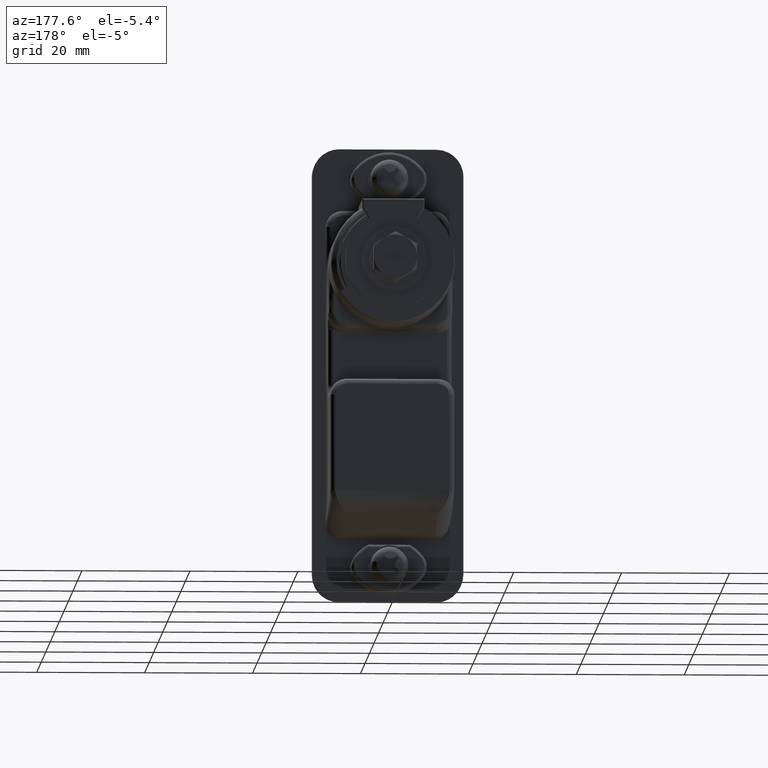
[diagram: clean part render]
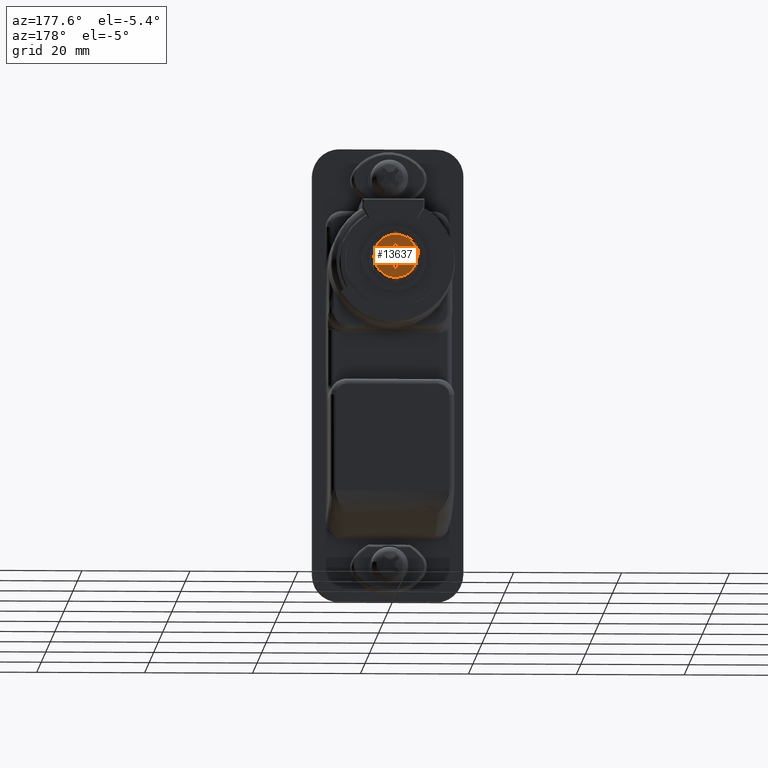
[diagram: same view with one face highlighted and labeled with its STEP entity id]
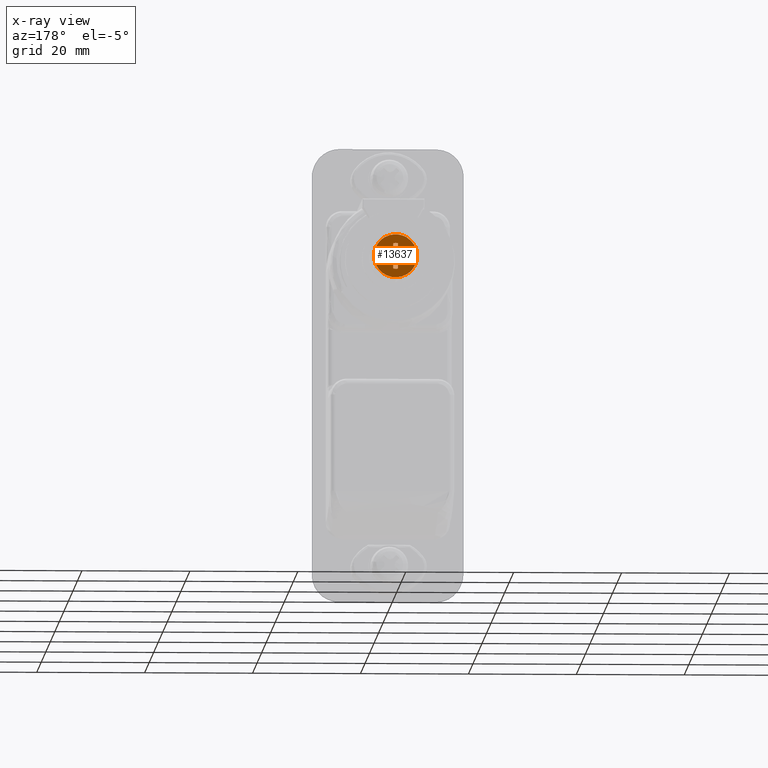
[diagram: x-ray of the same camera — body ghosted, the highlighted face saturated]
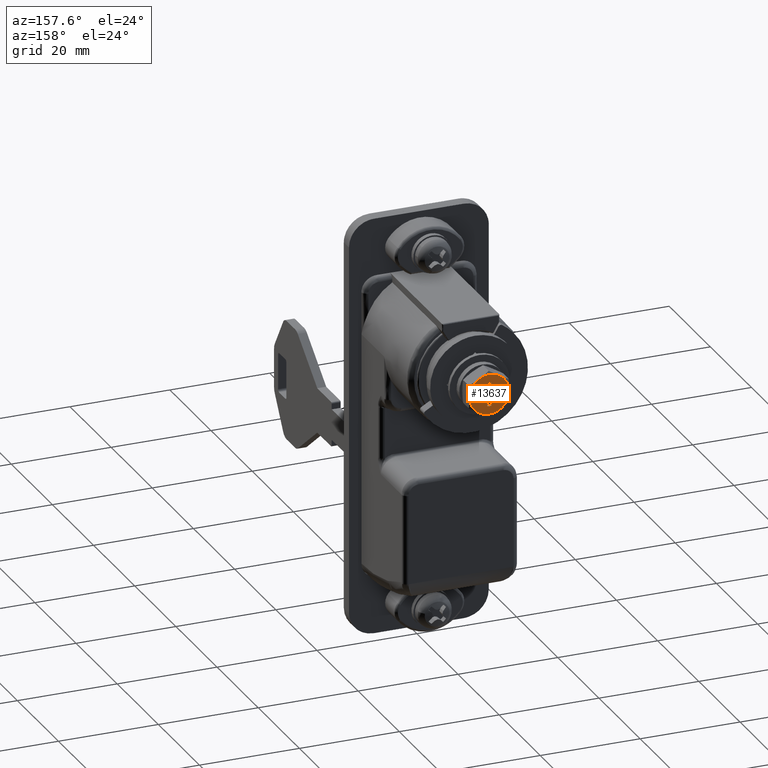
[diagram: same view with one face highlighted and labeled with its STEP entity id]
A machine part, auxiliary view. The second image highlights one B-rep face of the part: STEP entity #13637.
The next image is the same camera in x-ray: the body ghosted, the highlighted face saturated — about 0% of this face is hidden behind the body in this view.
A second angle (auxiliary view) of the same face is appended — the face is thin or edge-on in the first view.
In plain terms, the highlighted face is a freeform B-spline surface patch.
Its self-contained STEP definition (entity closure, byte-faithful):
#12249=CARTESIAN_POINT('',(92.639026999999999,-4.0,0.0));
#12250=VERTEX_POINT('',#12249);
#12393=CARTESIAN_POINT('',(92.639027000000098,2.023324305287225,-3.450530213696725));
#12394=VERTEX_POINT('',#12393);
#12408=CARTESIAN_POINT('',(92.639027000000098,1.977365605235620,-3.477071362976530));
#12409=VERTEX_POINT('',#12408);
#12410=CARTESIAN_POINT('',(92.639027000000098,2.023324305287225,-3.450530213696725));
#12411=CARTESIAN_POINT('',(92.639027000000098,1.977365605235620,-3.477071362976530));
#12412=QUASI_UNIFORM_CURVE('',1,(#12410,#12411),.UNSPECIFIED.,.F.,.U.);
#12413=EDGE_CURVE('',#12394,#12409,#12412,.T.);
#12481=CARTESIAN_POINT('',(92.639026999999999,4.0,0.0));
#12482=VERTEX_POINT('',#12481);
#12555=CARTESIAN_POINT('',(92.639027000000098,1.977365605217705,3.477071362986675));
#12556=VERTEX_POINT('',#12555);
#12570=CARTESIAN_POINT('',(92.639027000000098,2.023324305314395,3.450530213680835));
#12571=VERTEX_POINT('',#12570);
#12572=CARTESIAN_POINT('',(92.639027000000098,1.977365605217705,3.477071362986675));
#12573=CARTESIAN_POINT('',(92.639027000000098,2.023324305314395,3.450530213680835));
#12574=QUASI_UNIFORM_CURVE('',1,(#12572,#12573),.UNSPECIFIED.,.F.,.U.);
#12575=EDGE_CURVE('',#12556,#12571,#12574,.T.);
#12641=CARTESIAN_POINT('',(92.639027000000098,-2.023324305309695,3.450530213683550));
#12642=VERTEX_POINT('',#12641);
#12656=CARTESIAN_POINT('',(92.639027000000098,-1.977365605213010,3.477071362989390));
#12657=VERTEX_POINT('',#12656);
#12658=CARTESIAN_POINT('',(92.639027000000098,-2.023324305309695,3.450530213683550));
#12659=CARTESIAN_POINT('',(92.639027000000098,-1.977365605213010,3.477071362989390));
#12660=QUASI_UNIFORM_CURVE('',1,(#12658,#12659),.UNSPECIFIED.,.F.,.U.);
#12661=EDGE_CURVE('',#12642,#12657,#12660,.T.);
#12901=CARTESIAN_POINT('',(92.639027000000098,-1.273017066092126,0.439025629875906));
#12902=VERTEX_POINT('',#12901);
#12903=CARTESIAN_POINT('',(92.639026999999999,-2.362964186535205,0.420000214821243));
#12904=VERTEX_POINT('',#12903);
#12905=CARTESIAN_POINT('',(92.639027000000098,-1.273017066092126,0.439025629875906));
#12906=CARTESIAN_POINT('',(92.639026999999999,-2.362964186535205,0.420000214821243));
#12907=QUASI_UNIFORM_CURVE('',1,(#12905,#12906),.UNSPECIFIED.,.F.,.U.);
#12908=EDGE_CURVE('',#12902,#12904,#12907,.T.);
#12929=CARTESIAN_POINT('',(92.639026999999999,-0.704247241363434,0.704247241363434));
#12930=VERTEX_POINT('',#12929);
#12931=CARTESIAN_POINT('',(92.639026999999999,-0.704247241363434,0.704247241363434));
#12932=CARTESIAN_POINT('',(92.639027000000098,-1.273017066092126,0.439025629875906));
#12933=QUASI_UNIFORM_CURVE('',1,(#12931,#12932),.UNSPECIFIED.,.F.,.U.);
#12934=EDGE_CURVE('',#12930,#12902,#12933,.T.);
#12951=CARTESIAN_POINT('',(92.639026999999999,-0.439025629876066,1.273017066091964));
#12952=VERTEX_POINT('',#12951);
#12953=CARTESIAN_POINT('',(92.639026999999999,-0.439025629876066,1.273017066091964));
#12954=CARTESIAN_POINT('',(92.639026999999999,-0.704247241363434,0.704247241363434));
#12955=QUASI_UNIFORM_CURVE('',1,(#12953,#12954),.UNSPECIFIED.,.F.,.U.);
#12956=EDGE_CURVE('',#12952,#12930,#12955,.T.);
#12973=CARTESIAN_POINT('',(92.639026999999999,-0.419999995554674,2.362964240891950));
#12974=VERTEX_POINT('',#12973);
#12975=CARTESIAN_POINT('',(92.639026999999999,-0.419999995554674,2.362964240891950));
#12976=CARTESIAN_POINT('',(92.639026999999999,-0.439025629876066,1.273017066091964));
#12977=QUASI_UNIFORM_CURVE('',1,(#12975,#12976),.UNSPECIFIED.,.F.,.U.);
#12978=EDGE_CURVE('',#12974,#12952,#12977,.T.);
#13004=CARTESIAN_POINT('',(92.639026999999999,0.419999507714724,2.362964893641845));
#13005=VERTEX_POINT('',#13004);
#13006=CARTESIAN_POINT('',(92.639026999999999,0.419999507714724,2.362964893641845));
#13007=CARTESIAN_POINT('',(92.639026999999999,-0.000000301930711,2.437616182890210));
#13008=CARTESIAN_POINT('',(92.639026999999999,-0.419999995554672,2.362964240891951));
#13016=(BOUNDED_CURVE()B_SPLINE_CURVE(2,(#13006,#13007,#13008),.UNSPECIFIED.,.F.,.U.)CURVE()GEOMETRIC_REPRESENTATION_ITEM()QUASI_UNIFORM_CURVE()RATIONAL_B_SPLINE_CURVE((1.0,0.984568455381015,1.0))REPRESENTATION_ITEM(''));
#13017=EDGE_CURVE('',#13005,#12974,#13016,.T.);
#13034=CARTESIAN_POINT('',(92.639026999999999,0.439024922769207,1.273016358985426));
#13035=VERTEX_POINT('',#13034);
#13036=CARTESIAN_POINT('',(92.639026999999999,0.439024922769207,1.273016358985426));
#13037=CARTESIAN_POINT('',(92.639026999999999,0.419999507714724,2.362964893641845));
#13038=QUASI_UNIFORM_CURVE('',1,(#13036,#13037),.UNSPECIFIED.,.F.,.U.);
#13039=EDGE_CURVE('',#13035,#13005,#13038,.T.);
#13056=CARTESIAN_POINT('',(92.639026999999999,0.704246534256554,0.704246534256554));
#13057=VERTEX_POINT('',#13056);
#13058=CARTESIAN_POINT('',(92.639026999999999,0.704246534256554,0.704246534256554));
#13059=CARTESIAN_POINT('',(92.639026999999999,0.439024922769207,1.273016358985426));
#13060=QUASI_UNIFORM_CURVE('',1,(#13058,#13059),.UNSPECIFIED.,.F.,.U.);
#13061=EDGE_CURVE('',#13057,#13035,#13060,.T.);
#13078=CARTESIAN_POINT('',(92.639026999999999,1.273016358985506,0.439024922769126));
#13079=VERTEX_POINT('',#13078);
#13080=CARTESIAN_POINT('',(92.639026999999999,1.273016358985506,0.439024922769126));
#13081=CARTESIAN_POINT('',(92.639026999999999,0.704246534256554,0.704246534256554));
#13082=QUASI_UNIFORM_CURVE('',1,(#13080,#13081),.UNSPECIFIED.,.F.,.U.);
#13083=EDGE_CURVE('',#13079,#13057,#13082,.T.);
#13100=CARTESIAN_POINT('',(92.639026999999999,2.362964240891950,0.419999995554673));
#13101=VERTEX_POINT('',#13100);
#13102=CARTESIAN_POINT('',(92.639026999999999,2.362964240891950,0.419999995554673));
#13103=CARTESIAN_POINT('',(92.639026999999999,1.273016358985506,0.439024922769126));
#13104=QUASI_UNIFORM_CURVE('',1,(#13102,#13103),.UNSPECIFIED.,.F.,.U.);
#13105=EDGE_CURVE('',#13101,#13079,#13104,.T.);
#13131=CARTESIAN_POINT('',(92.639026999999999,2.362964186535185,-0.420000214821383));
#13132=VERTEX_POINT('',#13131);
#13133=CARTESIAN_POINT('',(92.639026999999999,2.362964186535185,-0.420000214821383));
#13134=CARTESIAN_POINT('',(92.639026999999999,2.437616256901414,-0.000000114464120));
#13135=CARTESIAN_POINT('',(92.639026999999999,2.362964240891951,0.419999995554673));
#13143=(BOUNDED_CURVE()B_SPLINE_CURVE(2,(#13133,#13134,#13135),.UNSPECIFIED.,.F.,.U.)CURVE()GEOMETRIC_REPRESENTATION_ITEM()QUASI_UNIFORM_CURVE()RATIONAL_B_SPLINE_CURVE((1.0,0.984568425487434,1.0))REPRESENTATION_ITEM(''));
#13144=EDGE_CURVE('',#13132,#13101,#13143,.T.);
#13161=CARTESIAN_POINT('',(92.639026999999999,1.273016358985266,-0.439024922769368));
#13162=VERTEX_POINT('',#13161);
#13163=CARTESIAN_POINT('',(92.639026999999999,1.273016358985266,-0.439024922769368));
#13164=CARTESIAN_POINT('',(92.639026999999999,2.362964186535185,-0.420000214821383));
#13165=QUASI_UNIFORM_CURVE('',1,(#13163,#13164),.UNSPECIFIED.,.F.,.U.);
#13166=EDGE_CURVE('',#13162,#13132,#13165,.T.);
#13183=CARTESIAN_POINT('',(92.639026999999999,0.704246534256654,-0.704246534256655));
#13184=VERTEX_POINT('',#13183);
#13185=CARTESIAN_POINT('',(92.639026999999999,0.704246534256654,-0.704246534256655));
#13186=CARTESIAN_POINT('',(92.639026999999999,1.273016358985266,-0.439024922769368));
#13187=QUASI_UNIFORM_CURVE('',1,(#13185,#13186),.UNSPECIFIED.,.F.,.U.);
#13188=EDGE_CURVE('',#13184,#13162,#13187,.T.);
#13205=CARTESIAN_POINT('',(92.639026999999999,0.439024922769207,-1.273016358985426));
#13206=VERTEX_POINT('',#13205);
#13207=CARTESIAN_POINT('',(92.639026999999999,0.439024922769207,-1.273016358985426));
#13208=CARTESIAN_POINT('',(92.639026999999999,0.704246534256654,-0.704246534256655));
#13209=QUASI_UNIFORM_CURVE('',1,(#13207,#13208),.UNSPECIFIED.,.F.,.U.);
#13210=EDGE_CURVE('',#13206,#13184,#13209,.T.);
#13227=CARTESIAN_POINT('',(92.639026999999999,0.419999995554670,-2.362964240891950));
#13228=VERTEX_POINT('',#13227);
#13229=CARTESIAN_POINT('',(92.639026999999999,0.419999995554670,-2.362964240891950));
#13230=CARTESIAN_POINT('',(92.639026999999999,0.439024922769207,-1.273016358985426));
#13231=QUASI_UNIFORM_CURVE('',1,(#13229,#13230),.UNSPECIFIED.,.F.,.U.);
#13232=EDGE_CURVE('',#13228,#13206,#13231,.T.);
#13258=CARTESIAN_POINT('',(92.639026999999999,-0.420000214821443,-2.362964186535285));
#13259=VERTEX_POINT('',#13258);
#13260=CARTESIAN_POINT('',(92.639026999999999,-0.420000214821443,-2.362964186535285));
#13261=CARTESIAN_POINT('',(92.639026999999999,-0.000000114464144,-2.437616256901417));
#13262=CARTESIAN_POINT('',(92.639026999999999,0.419999995554670,-2.362964240891951));
#13270=(BOUNDED_CURVE()B_SPLINE_CURVE(2,(#13260,#13261,#13262),.UNSPECIFIED.,.F.,.U.)CURVE()GEOMETRIC_REPRESENTATION_ITEM()QUASI_UNIFORM_CURVE()RATIONAL_B_SPLINE_CURVE((1.0,0.984568425487432,1.0))REPRESENTATION_ITEM(''));
#13271=EDGE_CURVE('',#13259,#13228,#13270,.T.);
#13288=CARTESIAN_POINT('',(92.639026999999999,-0.439024922769207,-1.273016358985586));
#13289=VERTEX_POINT('',#13288);
#13290=CARTESIAN_POINT('',(92.639026999999999,-0.439024922769207,-1.273016358985586));
#13291=CARTESIAN_POINT('',(92.639026999999999,-0.420000214821443,-2.362964186535285));
#13292=QUASI_UNIFORM_CURVE('',1,(#13290,#13291),.UNSPECIFIED.,.F.,.U.);
#13293=EDGE_CURVE('',#13289,#13259,#13292,.T.);
#13310=CARTESIAN_POINT('',(92.639026999999999,-0.704246534256715,-0.704246534256715));
#13311=VERTEX_POINT('',#13310);
#13312=CARTESIAN_POINT('',(92.639026999999999,-0.704246534256715,-0.704246534256715));
#13313=CARTESIAN_POINT('',(92.639026999999999,-0.439024922769207,-1.273016358985586));
#13314=QUASI_UNIFORM_CURVE('',1,(#13312,#13313),.UNSPECIFIED.,.F.,.U.);
#13315=EDGE_CURVE('',#13311,#13289,#13314,.T.);
#13332=CARTESIAN_POINT('',(92.639026999999999,-1.273016358985506,-0.439024922769287));
#13333=VERTEX_POINT('',#13332);
#13334=CARTESIAN_POINT('',(92.639026999999999,-1.273016358985506,-0.439024922769287));
#13335=CARTESIAN_POINT('',(92.639026999999999,-0.704246534256715,-0.704246534256715));
#13336=QUASI_UNIFORM_CURVE('',1,(#13334,#13335),.UNSPECIFIED.,.F.,.U.);
#13337=EDGE_CURVE('',#13333,#13311,#13336,.T.);
#13354=CARTESIAN_POINT('',(92.639026999999999,-2.362964893641925,-0.419999507714804));
#13355=VERTEX_POINT('',#13354);
#13356=CARTESIAN_POINT('',(92.639026999999999,-2.362964893641925,-0.419999507714804));
#13357=CARTESIAN_POINT('',(92.639026999999999,-1.273016358985506,-0.439024922769287));
#13358=QUASI_UNIFORM_CURVE('',1,(#13356,#13357),.UNSPECIFIED.,.F.,.U.);
#13359=EDGE_CURVE('',#13355,#13333,#13358,.T.);
#13385=CARTESIAN_POINT('',(92.639026999999999,-2.362964186535205,0.420000214821243));
#13386=CARTESIAN_POINT('',(92.639026999999999,-2.437616203235353,0.000000416394724));
#13387=CARTESIAN_POINT('',(92.639026999999999,-2.362964893641925,-0.419999507714804));
#13395=(BOUNDED_CURVE()B_SPLINE_CURVE(2,(#13385,#13386,#13387),.UNSPECIFIED.,.F.,.U.)CURVE()GEOMETRIC_REPRESENTATION_ITEM()QUASI_UNIFORM_CURVE()RATIONAL_B_SPLINE_CURVE((1.0,0.984568447163478,1.0))REPRESENTATION_ITEM(''));
#13396=EDGE_CURVE('',#12904,#13355,#13395,.T.);
#13538=CARTESIAN_POINT('',(92.639027000000098,-4.399599984494448,4.399510620716481));
#13539=CARTESIAN_POINT('',(92.639027000000098,-4.399599984494448,-4.397721770679988));
#13540=CARTESIAN_POINT('',(92.639027000000098,4.399600199071169,4.399510620716481));
#13541=CARTESIAN_POINT('',(92.639027000000098,4.399600199071169,-4.397721770679988));
#13542=B_SPLINE_SURFACE_WITH_KNOTS('',1,1,((#13538,#13540),(#13539,#13541)),.UNSPECIFIED.,.F.,.F.,.U.,(2,2),(2,2),(0.0,8.797232391396470),(0.0,8.799200183565617),.UNSPECIFIED.);
#13543=ORIENTED_EDGE('',*,*,#12661,.F.);
#13544=CARTESIAN_POINT('',(92.639027000000098,-4.0,0.0));
#13545=CARTESIAN_POINT('',(92.639027000000098,-4.000000000000001,2.291445745759914));
#13546=CARTESIAN_POINT('',(92.639027000000098,-2.023324305309697,3.450530213683549));
#13554=(BOUNDED_CURVE()B_SPLINE_CURVE(2,(#13544,#13545,#13546),.UNSPECIFIED.,.F.,.U.)CURVE()GEOMETRIC_REPRESENTATION_ITEM()QUASI_UNIFORM_CURVE()RATIONAL_B_SPLINE_CURVE((1.0,0.867707057804483,1.0))REPRESENTATION_ITEM(''));
#13555=EDGE_CURVE('',#12250,#12642,#13554,.T.);
#13556=ORIENTED_EDGE('',*,*,#13555,.F.);
#13557=CARTESIAN_POINT('',(92.639027000000098,1.977365605235602,-3.477071362976498));
#13558=CARTESIAN_POINT('',(92.639027000000084,-0.022570715116789,-4.614409334993553));
#13559=CARTESIAN_POINT('',(92.639027000000098,-2.011285357558394,-3.457561454330379));
#13560=CARTESIAN_POINT('',(92.639027000000084,-4.0,-2.300713573667206));
#13561=CARTESIAN_POINT('',(92.639027000000098,-4.0,0.0));
#13569=(BOUNDED_CURVE()B_SPLINE_CURVE(2,(#13557,#13558,#13559,#13560,#13561),.UNSPECIFIED.,.F.,.U.)B_SPLINE_CURVE_WITH_KNOTS((3,2,3),(0.0,0.500000000000000,1.0),.UNSPECIFIED.)CURVE()GEOMETRIC_REPRESENTATION_ITEM()RATIONAL_B_SPLINE_CURVE((1.0,0.866839471698653,1.0,0.866839471698653,1.0))REPRESENTATION_ITEM(''));
#13570=EDGE_CURVE('',#12409,#12250,#13569,.T.);
#13571=ORIENTED_EDGE('',*,*,#13570,.F.);
#13572=ORIENTED_EDGE('',*,*,#12413,.F.);
#13573=CARTESIAN_POINT('',(92.639027000000098,4.0,0.0));
#13574=CARTESIAN_POINT('',(92.639027000000098,4.000000000000001,-2.291445745777212));
#13575=CARTESIAN_POINT('',(92.639027000000098,2.023324305287226,-3.450530213696725));
#13583=(BOUNDED_CURVE()B_SPLINE_CURVE(2,(#13573,#13574,#13575),.UNSPECIFIED.,.F.,.U.)CURVE()GEOMETRIC_REPRESENTATION_ITEM()QUASI_UNIFORM_CURVE()RATIONAL_B_SPLINE_CURVE((1.0,0.867707057802864,1.0))REPRESENTATION_ITEM(''));
#13584=EDGE_CURVE('',#12482,#12394,#13583,.T.);
#13585=ORIENTED_EDGE('',*,*,#13584,.F.);
#13586=CARTESIAN_POINT('',(92.639027000000098,2.023324305314377,3.450530213680804));
#13587=CARTESIAN_POINT('',(92.639027000000112,4.0,2.291445745756310));
#13588=CARTESIAN_POINT('',(92.639027000000098,4.0,0.0));
#13596=(BOUNDED_CURVE()B_SPLINE_CURVE(2,(#13586,#13587,#13588),.UNSPECIFIED.,.F.,.U.)CURVE()GEOMETRIC_REPRESENTATION_ITEM()QUASI_UNIFORM_CURVE()RATIONAL_B_SPLINE_CURVE((1.0,0.867707057804820,1.0))REPRESENTATION_ITEM(''));
#13597=EDGE_CURVE('',#12571,#12482,#13596,.T.);
#13598=ORIENTED_EDGE('',*,*,#13597,.F.);
#13599=ORIENTED_EDGE('',*,*,#12575,.F.);
#13600=CARTESIAN_POINT('',(92.639027000000098,-1.977365605212993,3.477071362989356));
#13601=CARTESIAN_POINT('',(92.639027000000098,3.117298E-012,4.601573660613749));
#13602=CARTESIAN_POINT('',(92.639027000000098,1.977365605217704,3.477071362986677));
#13610=(BOUNDED_CURVE()B_SPLINE_CURVE(2,(#13600,#13601,#13602),.UNSPECIFIED.,.F.,.U.)CURVE()GEOMETRIC_REPRESENTATION_ITEM()QUASI_UNIFORM_CURVE()RATIONAL_B_SPLINE_CURVE((1.0,0.869267840747004,1.0))REPRESENTATION_ITEM(''));
#13611=EDGE_CURVE('',#12657,#12556,#13610,.T.);
#13612=ORIENTED_EDGE('',*,*,#13611,.F.);
#13613=EDGE_LOOP('',(#13543,#13556,#13571,#13572,#13585,#13598,#13599,#13612));
#13614=FACE_OUTER_BOUND('',#13613,.T.);
#13615=ORIENTED_EDGE('',*,*,#13396,.F.);
#13616=ORIENTED_EDGE('',*,*,#12908,.F.);
#13617=ORIENTED_EDGE('',*,*,#12934,.F.);
#13618=ORIENTED_EDGE('',*,*,#12956,.F.);
#13619=ORIENTED_EDGE('',*,*,#12978,.F.);
#13620=ORIENTED_EDGE('',*,*,#13017,.F.);
#13621=ORIENTED_EDGE('',*,*,#13039,.F.);
#13622=ORIENTED_EDGE('',*,*,#13061,.F.);
#13623=ORIENTED_EDGE('',*,*,#13083,.F.);
#13624=ORIENTED_EDGE('',*,*,#13105,.F.);
#13625=ORIENTED_EDGE('',*,*,#13144,.F.);
#13626=ORIENTED_EDGE('',*,*,#13166,.F.);
#13627=ORIENTED_EDGE('',*,*,#13188,.F.);
#13628=ORIENTED_EDGE('',*,*,#13210,.F.);
#13629=ORIENTED_EDGE('',*,*,#13232,.F.);
#13630=ORIENTED_EDGE('',*,*,#13271,.F.);
#13631=ORIENTED_EDGE('',*,*,#13293,.F.);
#13632=ORIENTED_EDGE('',*,*,#13315,.F.);
#13633=ORIENTED_EDGE('',*,*,#13337,.F.);
#13634=ORIENTED_EDGE('',*,*,#13359,.F.);
#13635=EDGE_LOOP('',(#13615,#13616,#13617,#13618,#13619,#13620,#13621,#13622,#13623,#13624,#13625,#13626,#13627,#13628,#13629,#13630,#13631,#13632,#13633,#13634));
#13636=FACE_BOUND('',#13635,.T.);
#13637=ADVANCED_FACE('',(#13614,#13636),#13542,.T.);